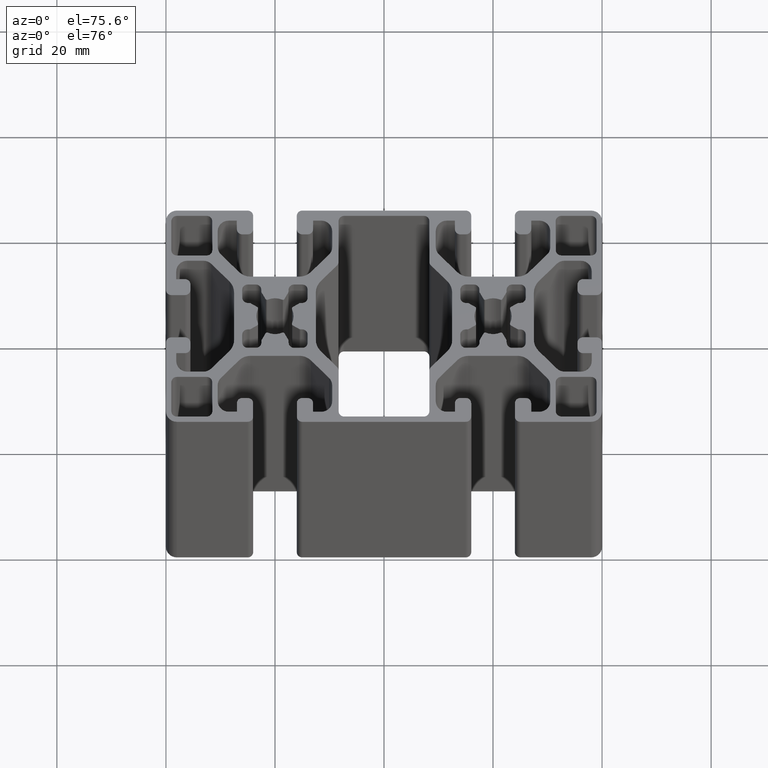
[diagram: clean part render]
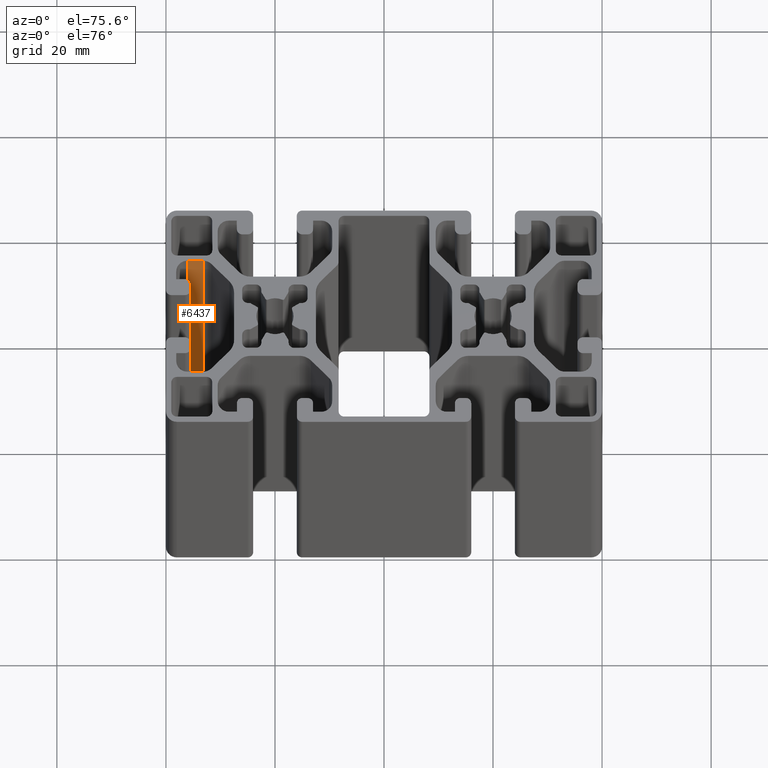
[diagram: same view with one face highlighted and labeled with its STEP entity id]
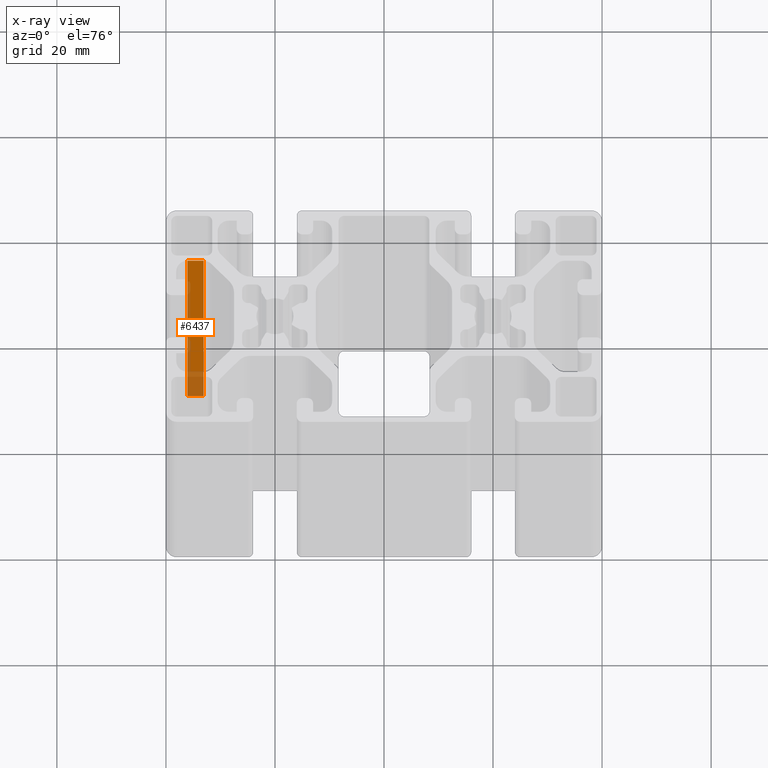
[diagram: x-ray of the same camera — body ghosted, the highlighted face saturated]
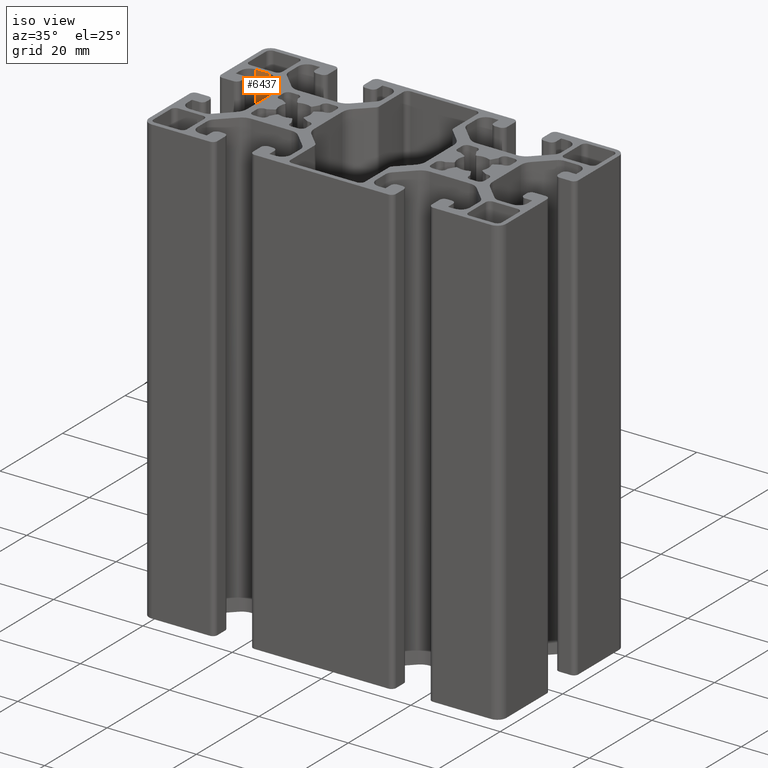
[diagram: same view with one face highlighted and labeled with its STEP entity id]
A machine part, auxiliary view. The second image highlights one B-rep face of the part: STEP entity #6437.
The next image is the same camera in x-ray: the body ghosted, the highlighted face saturated — about 31% of this face is hidden behind the body in this view.
A second angle (iso view) of the same face is appended — the face is thin or edge-on in the first view.
In plain terms, the highlighted planar face has unit normal (-0, 1, 0).
Its self-contained STEP definition (entity closure, byte-faithful):
#617=FACE_OUTER_BOUND('',#951,.T.);
#951=EDGE_LOOP('',(#4531,#4532,#4533,#4534));
#1388=LINE('',#9877,#2048);
#1389=LINE('',#9880,#2049);
#1390=LINE('',#9882,#2050);
#1391=LINE('',#9883,#2051);
#2048=VECTOR('',#7866,100.);
#2049=VECTOR('',#7869,3.00380592228744);
#2050=VECTOR('',#7870,3.00380592228744);
#2051=VECTOR('',#7871,100.);
#2709=VERTEX_POINT('',#9873);
#2710=VERTEX_POINT('',#9875);
#2711=VERTEX_POINT('',#9879);
#2712=VERTEX_POINT('',#9881);
#3454=EDGE_CURVE('',#2710,#2709,#1388,.T.);
#3455=EDGE_CURVE('',#2709,#2711,#1389,.T.);
#3456=EDGE_CURVE('',#2712,#2710,#1390,.T.);
#3457=EDGE_CURVE('',#2712,#2711,#1391,.T.);
#4531=ORIENTED_EDGE('',*,*,#3455,.F.);
#4532=ORIENTED_EDGE('',*,*,#3454,.F.);
#4533=ORIENTED_EDGE('',*,*,#3456,.F.);
#4534=ORIENTED_EDGE('',*,*,#3457,.T.);
#6230=PLANE('',#6855);
#6437=ADVANCED_FACE('',(#617),#6230,.F.);
#6855=AXIS2_PLACEMENT_3D('',#9878,#7867,#7868);
#7866=DIRECTION('',(0.,0.,1.));
#7867=DIRECTION('center_axis',(-5.91368712013035E-15,1.,0.));
#7868=DIRECTION('ref_axis',(0.,0.,1.));
#7869=DIRECTION('',(1.,5.91368712013035E-15,0.));
#7870=DIRECTION('',(-1.,-5.91368712013035E-15,0.));
#7871=DIRECTION('',(0.,0.,1.));
#9873=CARTESIAN_POINT('',(-36.1,10.5,100.));
#9875=CARTESIAN_POINT('',(-36.1,10.5,0.));
#9877=CARTESIAN_POINT('',(-36.1,10.5,0.));
#9878=CARTESIAN_POINT('Origin',(-36.1,10.5,0.));
#9879=CARTESIAN_POINT('',(-33.0961940777126,10.5,100.));
#9880=CARTESIAN_POINT('',(-18.05,10.5000000000001,100.));
#9881=CARTESIAN_POINT('',(-33.0961940777126,10.5,0.));
#9882=CARTESIAN_POINT('',(-18.05,10.5000000000001,0.));
#9883=CARTESIAN_POINT('',(-33.0961940777126,10.5,0.));